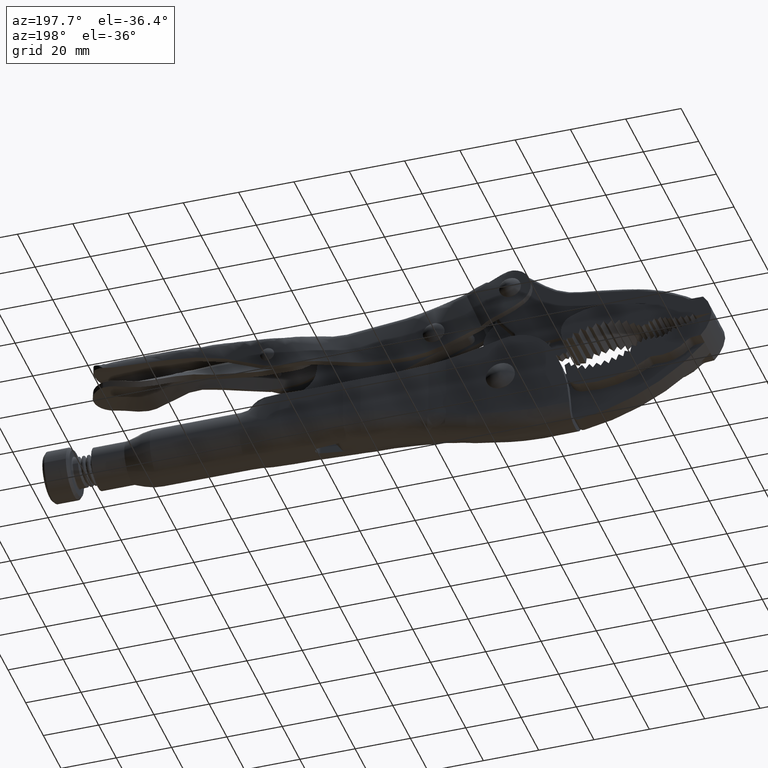
[diagram: clean part render]
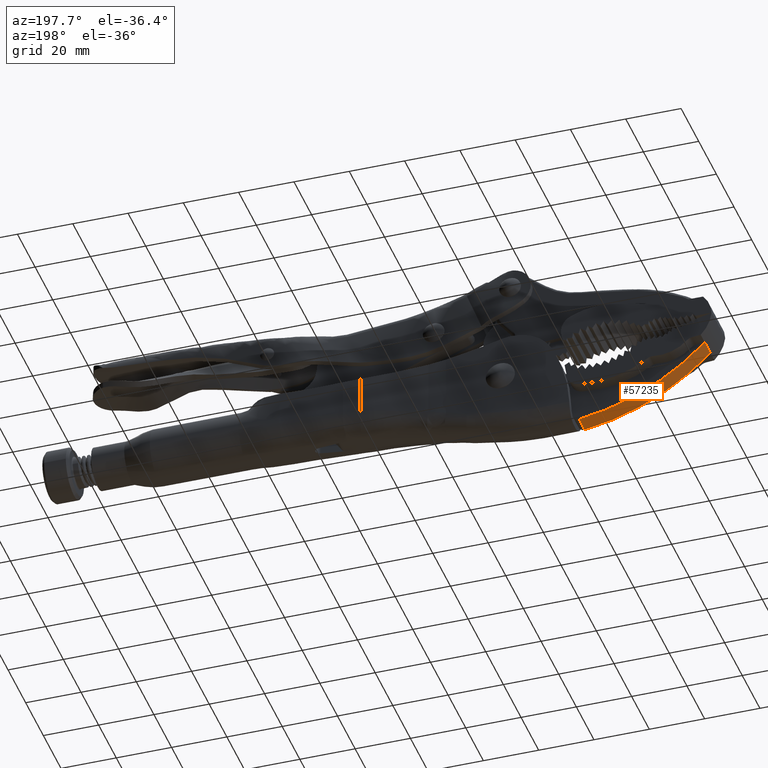
[diagram: same view with one face highlighted and labeled with its STEP entity id]
A machine part, auxiliary view. The second image highlights one B-rep face of the part: STEP entity #57235.
In plain terms, the highlighted cylindrical surface (partial cylindrical patch) has radius 76.6237 mm, axis along (-0, -1, -0).
Its self-contained STEP definition (entity closure, byte-faithful):
#1020 = ORIENTED_EDGE ( 'NONE', *, *, #4531, .T. ) ;
#2095 = VERTEX_POINT ( 'NONE', #79471 ) ;
#3860 = DIRECTION ( 'NONE',  ( -2.120971167893337600E-019, -1.000000000000000000, -3.925173843695128400E-017 ) ) ;
#4531 = EDGE_CURVE ( 'NONE', #9961, #2095, #61605, .T. ) ;
#6024 = EDGE_CURVE ( 'NONE', #2095, #22709, #20883, .T. ) ;
#7141 = DIRECTION ( 'NONE',  ( 2.120971167893337600E-019, 1.000000000000000000, 3.925173843695128400E-017 ) ) ;
#7225 = ORIENTED_EDGE ( 'NONE', *, *, #46156, .F. ) ;
#9961 = VERTEX_POINT ( 'NONE', #88391 ) ;
#12444 = EDGE_LOOP ( 'NONE', ( #7225, #1020, #45486, #26340 ) ) ;
#15520 = CARTESIAN_POINT ( 'NONE',  ( -20.22875787348816300, -6.799999999999998000, 55.49478461904285400 ) ) ;
#20883 = CIRCLE ( 'NONE', #34038, 76.62372759419967800 ) ;
#22108 = EDGE_CURVE ( 'NONE', #22709, #89254, #62002, .T. ) ;
#22645 = CARTESIAN_POINT ( 'NONE',  ( -75.30205904002565400, -6.799999999999995400, 2.220709037668577000 ) ) ;
#22709 = VERTEX_POINT ( 'NONE', #48367 ) ;
#23282 = DIRECTION ( 'NONE',  ( -0.05175546526487779400, -3.395926164994073100E-017, 0.9986597878232685900 ) ) ;
#26340 = ORIENTED_EDGE ( 'NONE', *, *, #22108, .T. ) ;
#32412 = AXIS2_PLACEMENT_3D ( 'NONE', #78305, #85960, #55451 ) ;
#34038 = AXIS2_PLACEMENT_3D ( 'NONE', #36189, #89385, #43875 ) ;
#36189 = CARTESIAN_POINT ( 'NONE',  ( -20.22875787348816300, -13.19999999999999800, 55.49478461904285400 ) ) ;
#37004 = FACE_OUTER_BOUND ( 'NONE', #12444, .T. ) ;
#41365 = VECTOR ( 'NONE', #3860, 1000.000000000000000 ) ;
#43875 = DIRECTION ( 'NONE',  ( -0.05175546526487779400, -4.527901553325431000E-017, 0.9986597878232685900 ) ) ;
#45486 = ORIENTED_EDGE ( 'NONE', *, *, #6024, .T. ) ;
#46156 = EDGE_CURVE ( 'NONE', #9961, #89254, #61249, .T. ) ;
#48367 = CARTESIAN_POINT ( 'NONE',  ( -75.30205904002561100, -13.19999999999999400, 2.220709037667778900 ) ) ;
#51447 = AXIS2_PLACEMENT_3D ( 'NONE', #15520, #68970, #23282 ) ;
#53656 = CARTESIAN_POINT ( 'NONE',  ( -29.90063508264069400, -6.799999999999994500, -20.51607264280622200 ) ) ;
#55451 = DIRECTION ( 'NONE',  ( -0.05175546526487779400, -3.395926164994073100E-017, 0.9986597878232685900 ) ) ;
#57235 = ADVANCED_FACE ( 'NONE', ( #37004 ), #92883, .T. ) ;
#61249 = CIRCLE ( 'NONE', #51447, 76.62372759419967800 ) ;
#61605 = LINE ( 'NONE', #53656, #41365 ) ;
#62002 = LINE ( 'NONE', #22645, #84555 ) ;
#68970 = DIRECTION ( 'NONE',  ( 2.120971167893337600E-019, 1.000000000000000000, 3.925173843695128400E-017 ) ) ;
#74067 = CARTESIAN_POINT ( 'NONE',  ( -75.30205904002561100, -6.799999999999995400, 2.220709037667792700 ) ) ;
#78305 = CARTESIAN_POINT ( 'NONE',  ( -20.22875787348816300, -6.799999999999997200, 55.49478461904285400 ) ) ;
#79471 = CARTESIAN_POINT ( 'NONE',  ( -29.90063508264069400, -13.19999999999999400, -20.51607264280622200 ) ) ;
#84555 = VECTOR ( 'NONE', #7141, 1000.000000000000000 ) ;
#85960 = DIRECTION ( 'NONE',  ( -2.120971167893337600E-019, -1.000000000000000000, -3.925173843695128400E-017 ) ) ;
#88391 = CARTESIAN_POINT ( 'NONE',  ( -29.90063508264069400, -6.799999999999995400, -20.51607264280622200 ) ) ;
#89254 = VERTEX_POINT ( 'NONE', #74067 ) ;
#89385 = DIRECTION ( 'NONE',  ( 2.120971167893337600E-019, 1.000000000000000000, 3.925173843695128400E-017 ) ) ;
#92883 = CYLINDRICAL_SURFACE ( 'NONE', #32412, 76.62372759419967800 ) ;